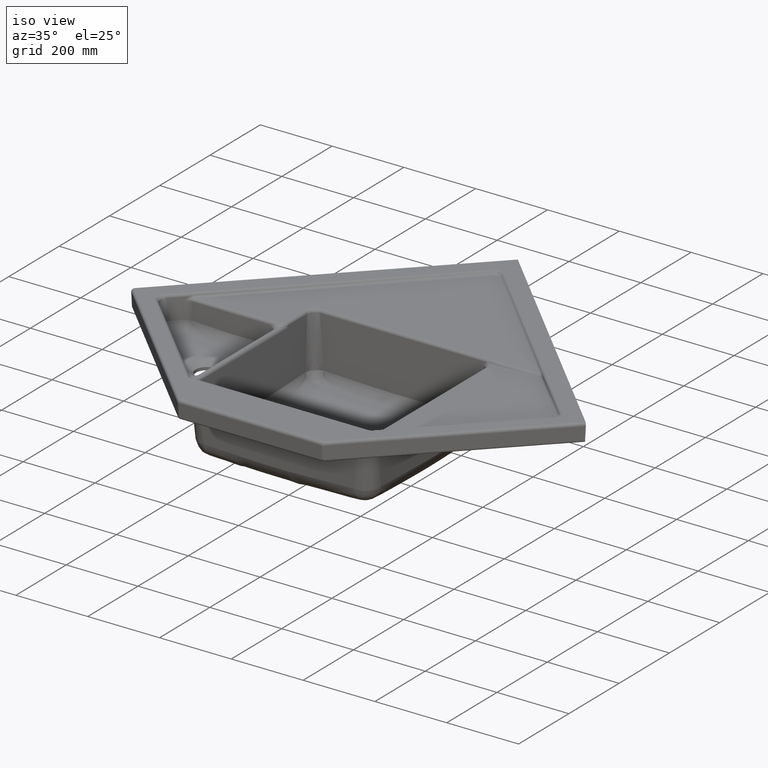
[diagram: clean part render]
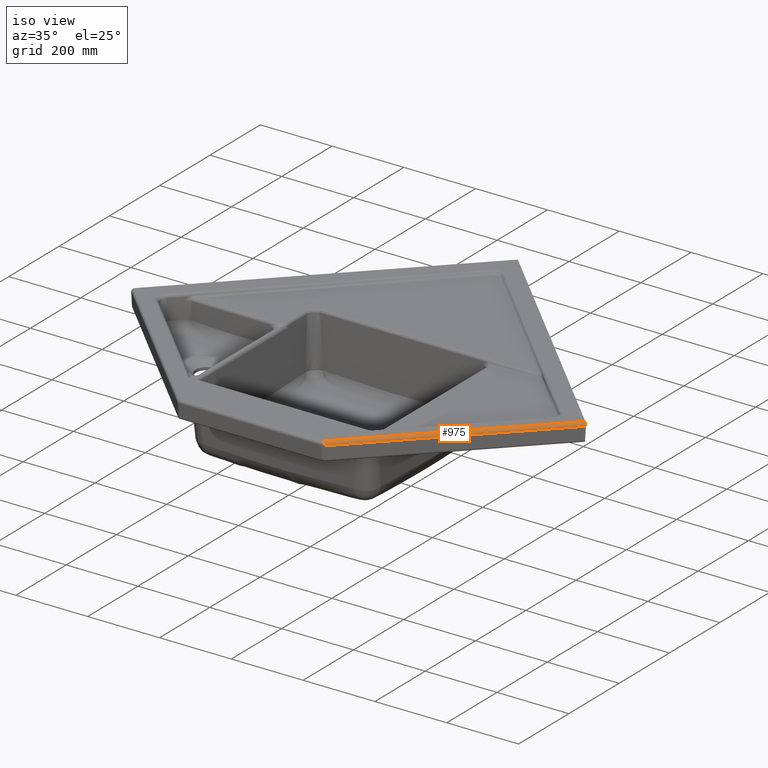
[diagram: same view with one face highlighted and labeled with its STEP entity id]
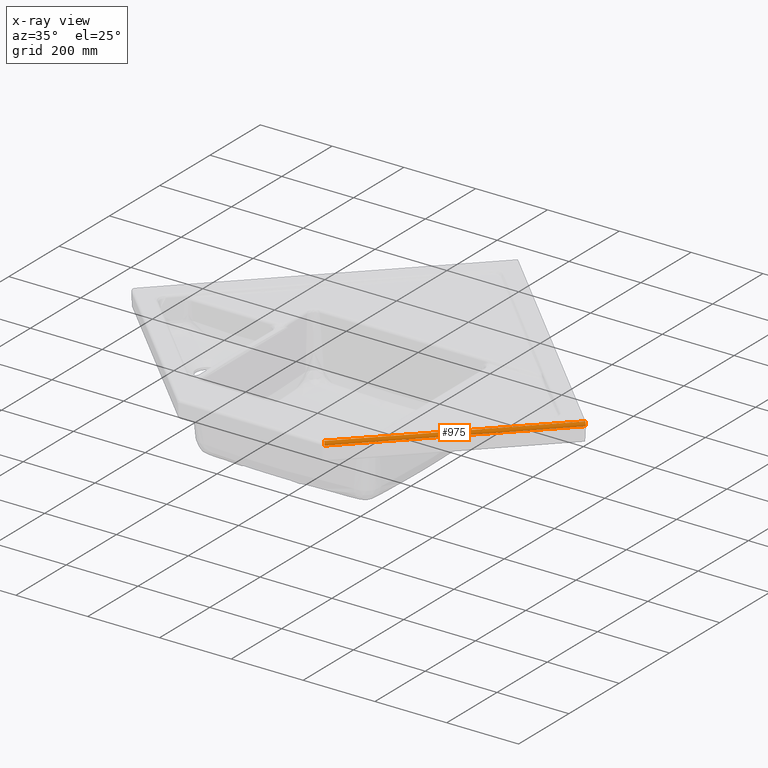
[diagram: x-ray of the same camera — body ghosted, the highlighted face saturated]
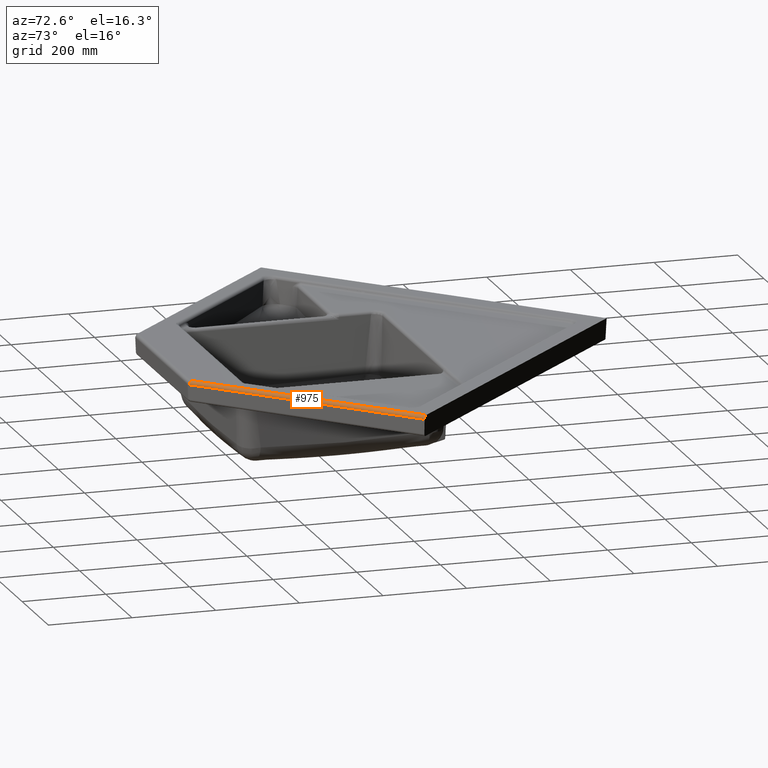
[diagram: same view with one face highlighted and labeled with its STEP entity id]
A machine part, iso view. The second image highlights one B-rep face of the part: STEP entity #975.
The next image is the same camera in x-ray: the body ghosted, the highlighted face saturated — about 0% of this face is hidden behind the body in this view.
A second angle (auxiliary view) of the same face is appended — the face is thin or edge-on in the first view.
In plain terms, the highlighted cylindrical surface (edge-blend (fillet) strip) has radius 8 mm, axis along (-0.7071, -0.7071, 0).
Its self-contained STEP definition (entity closure, byte-faithful):
#109=ELLIPSE('',#6083,8.0063974420461,8.00000000000015);
#184=CYLINDRICAL_SURFACE('',#6187,8.00000000000015);
#507=CIRCLE('',#6186,8.);
#975=ADVANCED_FACE('',(#1545),#184,.T.);
#1545=FACE_OUTER_BOUND('',#1951,.T.);
#1951=EDGE_LOOP('',(#3957,#3958,#3959,#3960));
#3957=ORIENTED_EDGE('',*,*,#5049,.F.);
#3958=ORIENTED_EDGE('',*,*,#5288,.F.);
#3959=ORIENTED_EDGE('',*,*,#5411,.F.);
#3960=ORIENTED_EDGE('',*,*,#4983,.F.);
#4274=VERTEX_POINT('',#13828);
#4275=VERTEX_POINT('',#13839);
#4319=VERTEX_POINT('',#19445);
#4455=VERTEX_POINT('',#40841);
#4983=EDGE_CURVE('',#4274,#4275,#5609,.T.);
#5049=EDGE_CURVE('',#4319,#4274,#109,.T.);
#5288=EDGE_CURVE('',#4455,#4319,#5814,.T.);
#5411=EDGE_CURVE('',#4275,#4455,#507,.T.);
#5609=B_SPLINE_CURVE_WITH_KNOTS('',3,(#13829,#13830,#13831,#13832,#13833,
#13834,#13835,#13836,#13837,#13838),.UNSPECIFIED.,.F.,.F.,(4,2,2,2,4),(0.,
0.02642922045795,0.13214610228975,0.555013629616951,1.),.UNSPECIFIED.);
#5814=B_SPLINE_CURVE_WITH_KNOTS('',3,(#40842,#40843,#40844,#40845,#40846,
#40847,#40848,#40849,#40850,#40851,#40852,#40853),.UNSPECIFIED.,.F.,.F.,
(4,2,2,2,2,4),(0.,0.0264147000096698,0.132073500048349,0.554708700203065,
0.884308921845086,1.),.UNSPECIFIED.);
#6083=AXIS2_PLACEMENT_3D('',#19446,#6671,#6672);
#6186=AXIS2_PLACEMENT_3D('',#42638,#6894,#6895);
#6187=AXIS2_PLACEMENT_3D('',#42639,#6896,#6897);
#6671=DIRECTION('',(0.706541773680277,0.706541773680277,-0.0399680383488719));
#6672=DIRECTION('',(-0.028261670947169,-0.0282616709472536,-0.999200958721789));
#6894=DIRECTION('',(-0.707106781186547,-0.707106781186548,2.4532694666934E-15));
#6895=DIRECTION('',(0.707106781186548,-0.707106781186545,0.));
#6896=DIRECTION('',(-0.707106781186546,-0.707106781186549,2.26512098646238E-15));
#6897=DIRECTION('',(0.707106781186549,-0.707106781186546,0.));
#13828=CARTESIAN_POINT('',(633.097040133781,77.3351365237943,191.680255693208));
#13829=CARTESIAN_POINT('',(633.097040133781,77.3351365237942,191.680255693209));
#13830=CARTESIAN_POINT('',(629.325803967453,73.5639003574659,191.680255693209));
#13831=CARTESIAN_POINT('',(625.554567801124,69.7926641911377,191.680255693209));
#13832=CARTESIAN_POINT('',(606.698386969483,50.9364833594964,191.680255693209));
#13833=CARTESIAN_POINT('',(591.61344230417,35.8515386941834,191.680255693209));
#13834=CARTESIAN_POINT('',(516.188718977605,-39.5731846323816,191.680255693209));
#13835=CARTESIAN_POINT('',(455.848940316353,-99.9129632936337,191.680255693209));
#13836=CARTESIAN_POINT('',(332.013202847625,-223.748700762362,191.680255693209));
#13837=CARTESIAN_POINT('',(268.517244040149,-287.244659569837,191.680255693209));
#13838=CARTESIAN_POINT('',(205.021285232674,-350.740618377313,191.680255693209));
#13839=CARTESIAN_POINT('',(205.021285232674,-350.740618377313,191.680255693209));
#19445=CARTESIAN_POINT('',(627.680023672245,83.2227887946959,200.));
#19446=CARTESIAN_POINT('',(627.453749679041,82.9965144479399,191.999999999999));
#40841=CARTESIAN_POINT('',(199.368951043232,-345.088284187871,200.));
#40842=CARTESIAN_POINT('',(199.368951043232,-345.088284187871,200.));
#40843=CARTESIAN_POINT('',(203.14018720956,-341.317048021543,200.));
#40844=CARTESIAN_POINT('',(206.911423375888,-337.545811855214,200.));
#40845=CARTESIAN_POINT('',(225.767604207529,-318.689631023573,200.));
#40846=CARTESIAN_POINT('',(240.852548872842,-303.60468635826,200.));
#40847=CARTESIAN_POINT('',(316.277272199407,-228.179963031695,200.));
#40848=CARTESIAN_POINT('',(376.61705086066,-167.840184370443,200.));
#40849=CARTESIAN_POINT('',(484.013971031418,-60.4432641996843,200.));
#40850=CARTESIAN_POINT('',(531.071112540925,-13.3861226901774,200.));
#40851=CARTESIAN_POINT('',(594.645510649961,50.1882754188593,200.));
#40852=CARTESIAN_POINT('',(611.162767249492,66.7055320183892,200.));
#40853=CARTESIAN_POINT('',(627.680023849022,83.2227886179192,200.));
#42638=CARTESIAN_POINT('',(199.368951043231,-345.088284187871,192.));
#42639=CARTESIAN_POINT('',(199.368951043232,-345.088284187871,192.));